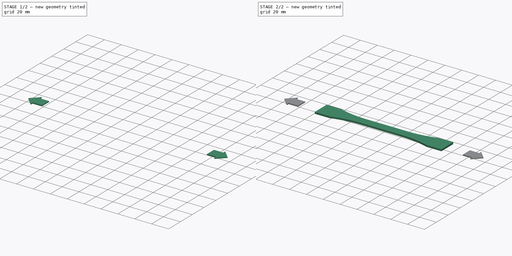
[diagram: build sequence overview — one tinted view per stage of 2, left to right]
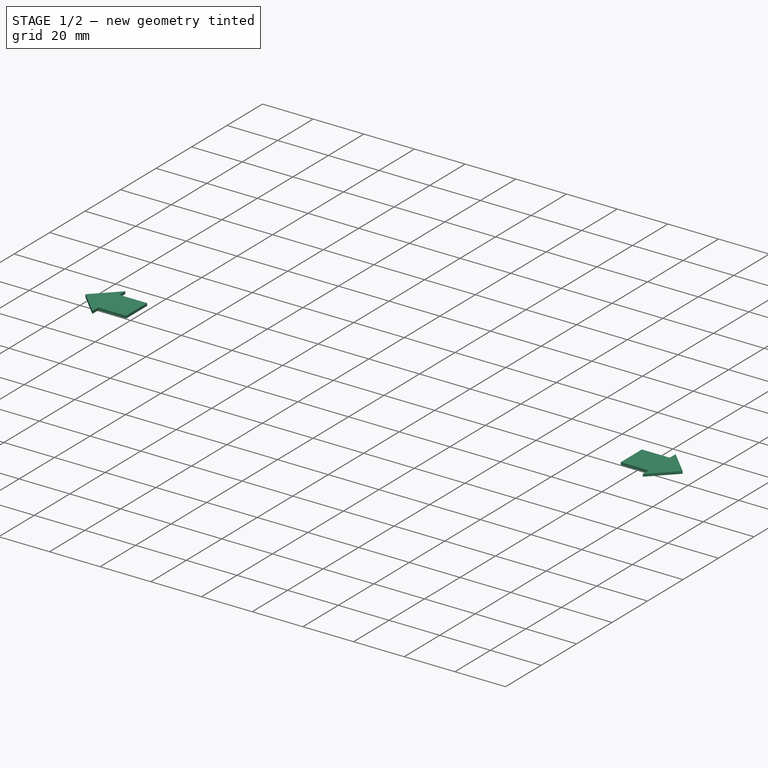
[diagram: stage 1 of 2 — iso view after this stage's code; geometry added in this stage tinted green]
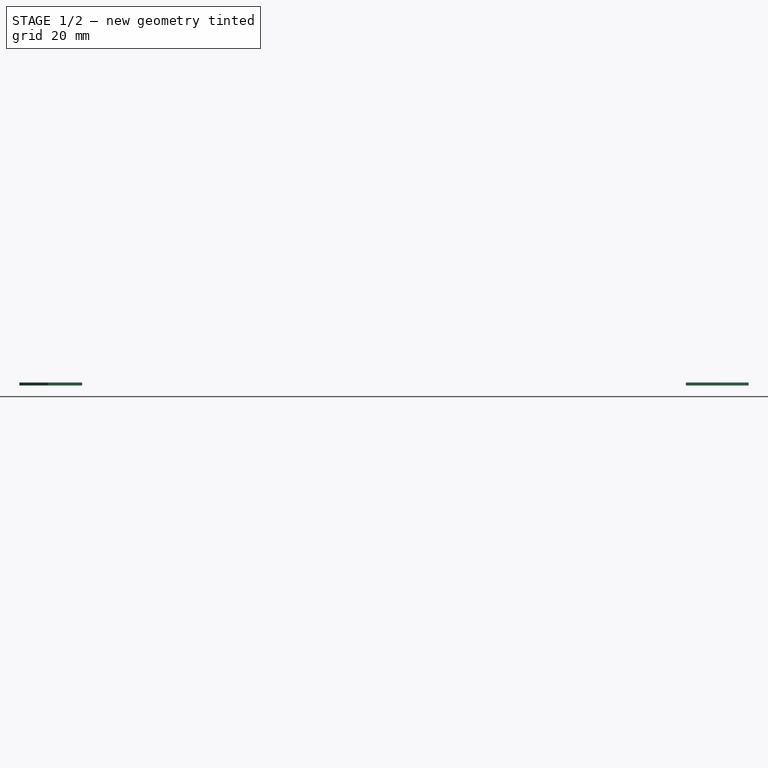
[diagram: stage 1 of 2 — front view after this stage's code; geometry added in this stage tinted green]
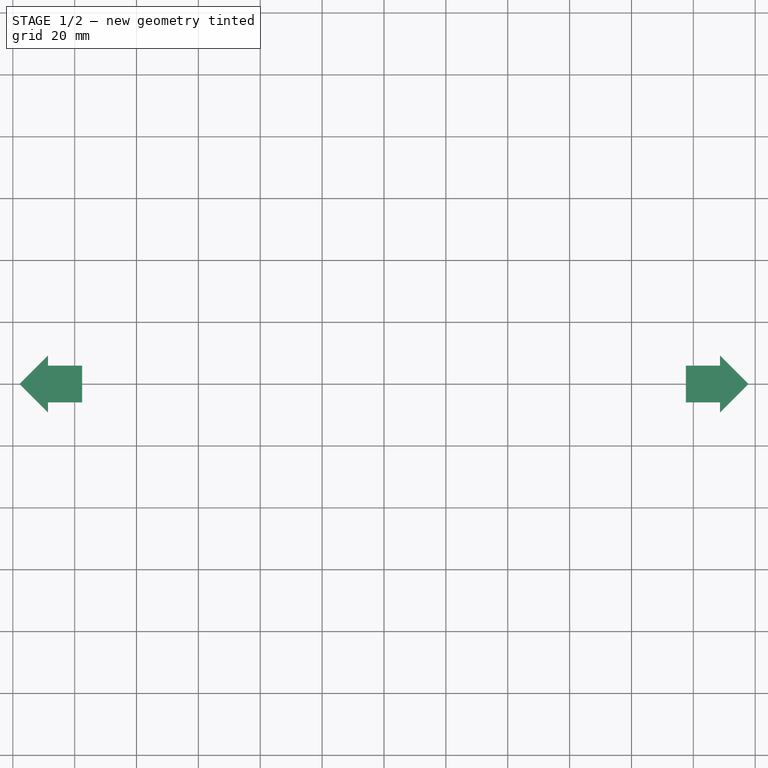
[diagram: stage 1 of 2 — top view after this stage's code; geometry added in this stage tinted green]
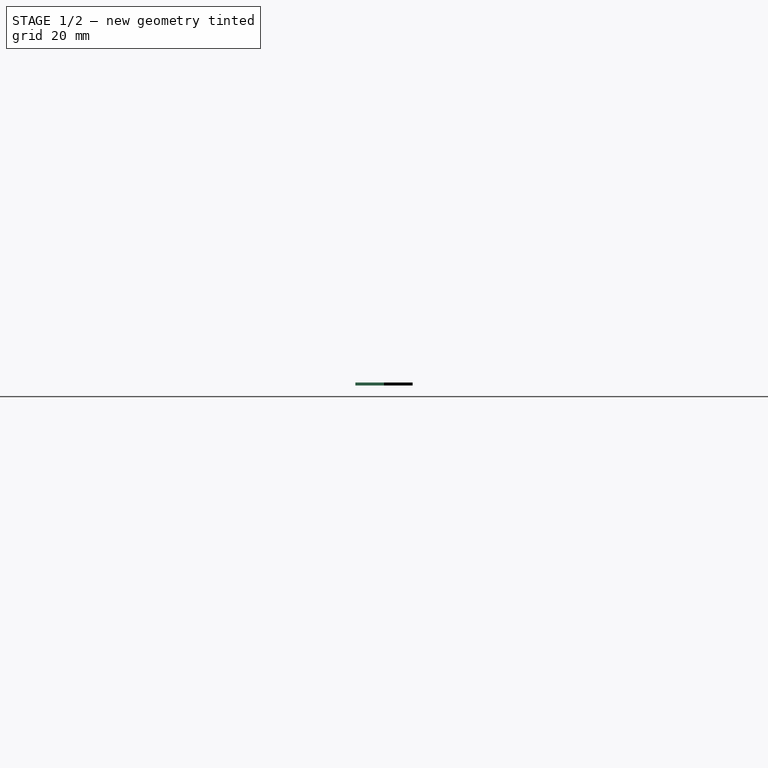
[diagram: stage 1 of 2 — right view after this stage's code; geometry added in this stage tinted green]
FCSTD DOCUMENT  (FreeCAD 0.16R6706 (Git))
Label: tensile_specimen
License: All rights reserved
LicenseURL: http://en.wikipedia.org/wiki/All_rights_reserved
objects: Sketcher::SketchObject×2, PartDesign::Pad×2, Part::FeaturePython×1, Part::MultiFuse×1, Drawing::FeatureViewPart×1, Drawing::FeaturePage×1
note: 8 computed .brp shape members not serialized (recipe doc carries the construction recipe); baked Part::Feature solids carry a one-line shape summary decoded from their .brp

FEATURE [Sketcher::SketchObject] Sketch001
  sketch-geometry (7):
    g0: LineSegment StartX=108.609 StartY=5.92502 StartZ=0 EndX=97.607 EndY=5.92502 EndZ=0
    g1: LineSegment StartX=97.607 StartY=5.92502 StartZ=0 EndX=97.607 EndY=-5.92502 EndZ=0
    g2: LineSegment StartX=97.607 StartY=-5.92502 StartZ=0 EndX=108.609 EndY=-5.92502 EndZ=0
    g3: LineSegment StartX=108.609 StartY=-5.92502 StartZ=0 EndX=108.609 EndY=-9.25523 EndZ=0
    g4: LineSegment StartX=108.609 StartY=-9.25523 StartZ=0 EndX=117.864 EndY=0 EndZ=0
    g5: LineSegment StartX=117.864 StartY=0 StartZ=0 EndX=108.609 EndY=9.25523 EndZ=0
    g6: LineSegment StartX=108.609 StartY=9.25523 StartZ=0 EndX=108.609 EndY=5.92502 EndZ=0
  constraints (17):
    c: Horizontal(g0)
    c: Coincident(g0,g1)
    c: Vertical(g1)
    c: Coincident(g1,g2)
    c: Horizontal(g2)
    c: Coincident(g2,g3)
    c: Vertical(g3)
    c: Coincident(g3,g4)
    c: PointOnObject(g4,g-1)
    c: Coincident(g4,g5)
    c: Coincident(g5,g6)
    c: Coincident(g6,g0)
    c: Vertical(g6)
    c: Equal(g5,g4)
    c: Perpendicular(g4,g5)
    c: Equal(g0,g2)
    c: Symmetric(g0,g1,g-1)
FEATURE [PartDesign::Pad] Pad001  label="lower arrow"
  Length = 1
  Length2 = 100
  Reversed = true
  Sketch = -> Sketch001
  Type = 0
FEATURE [Part::FeaturePython] Array  # Draft array (typed FeaturePython)
  Angle = 360
  ArrayType = 1
  Axis = (0,0,1)
  Base = -> Pad001
  Center = (0,0,0)
  Fuse = false
  IntervalAxis = (0,0,0)
  IntervalX = (1,0,0)
  IntervalY = (0,1,0)
  IntervalZ = (0,0,0)
  NumberPolar = 2
  NumberX = 2
  NumberY = 2
  NumberZ = 1
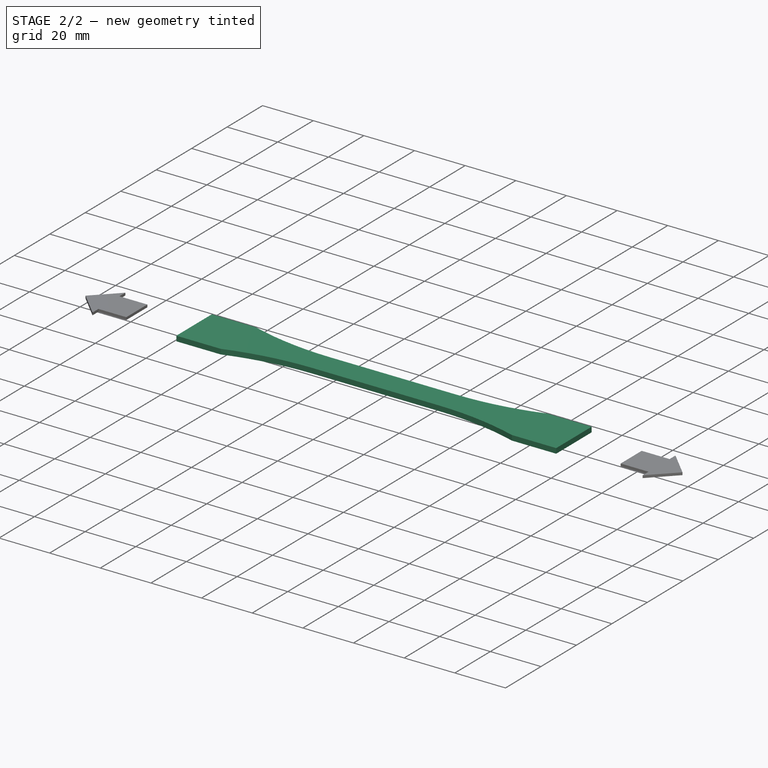
[diagram: stage 2 of 2 — iso view after this stage's code; geometry added in this stage tinted green]
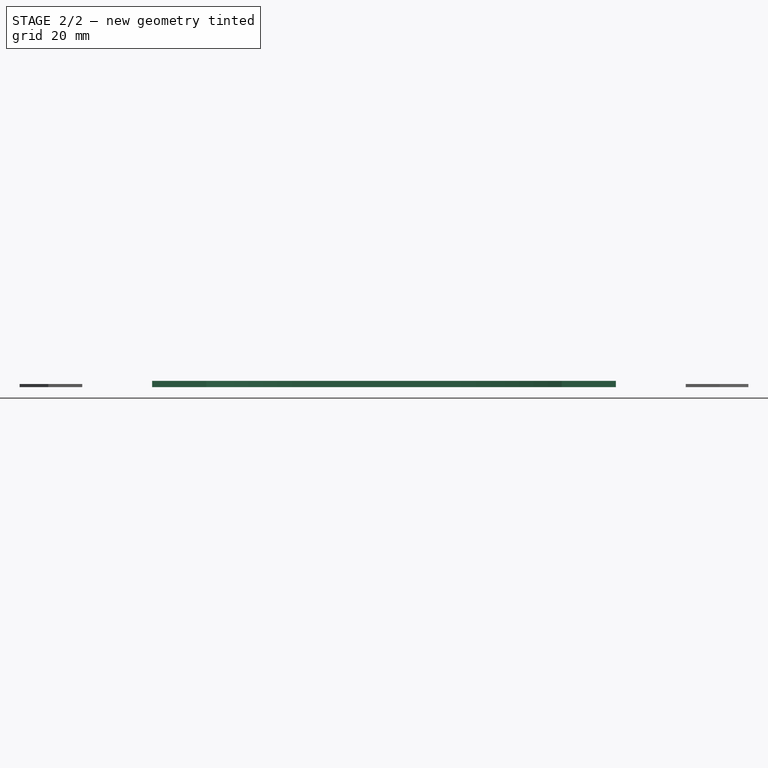
[diagram: stage 2 of 2 — front view after this stage's code; geometry added in this stage tinted green]
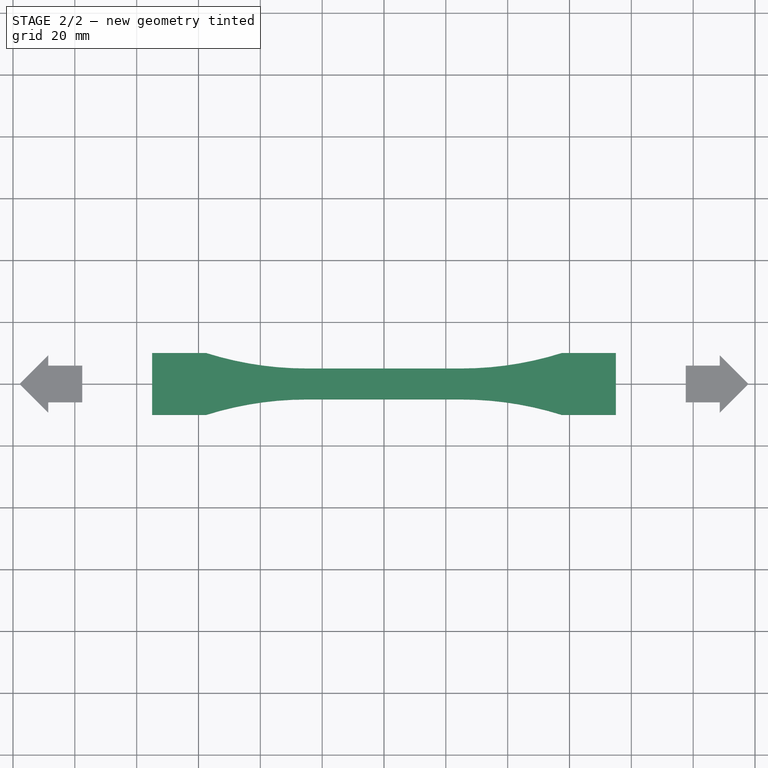
[diagram: stage 2 of 2 — top view after this stage's code; geometry added in this stage tinted green]
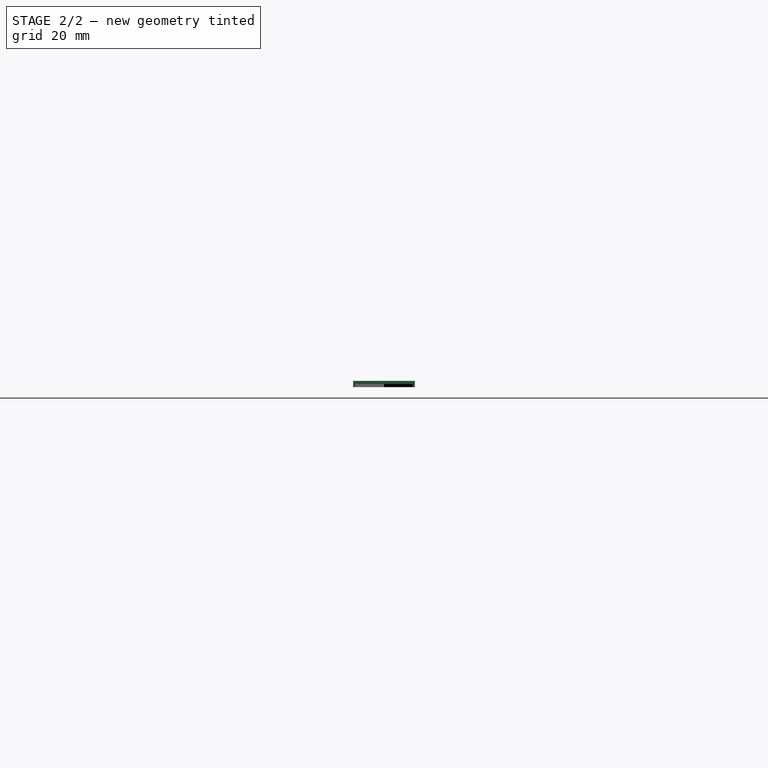
[diagram: stage 2 of 2 — right view after this stage's code; geometry added in this stage tinted green]
FEATURE [Sketcher::SketchObject] Sketch
  sketch-geometry (12):
    g0: LineSegment StartX=-57.4808 StartY=10 StartZ=0 EndX=-75 EndY=10 EndZ=0
    g1: LineSegment StartX=-75 StartY=10 StartZ=0 EndX=-75 EndY=-10 EndZ=0
    g2: LineSegment StartX=-75 StartY=-10 StartZ=0 EndX=-57.4808 EndY=-10 EndZ=0
    g3: LineSegment StartX=57.4808 StartY=10 StartZ=0 EndX=75 EndY=10 EndZ=0
    g4: LineSegment StartX=75 StartY=10 StartZ=0 EndX=75 EndY=-10 EndZ=0
    g5: LineSegment StartX=75 StartY=-10 StartZ=0 EndX=57.4807 EndY=-10 EndZ=0
    g6: LineSegment StartX=-25.0001 StartY=5 StartZ=0 EndX=24.9999 EndY=5 EndZ=0
    g7: LineSegment StartX=-25.0001 StartY=-5 StartZ=0 EndX=24.9999 EndY=-5 EndZ=0
    g8: ArcOfCircle CenterX=-25 CenterY=113 CenterZ=0 NormalX=0 NormalY=0 NormalZ=1 Radius=108 StartAngle=4.40691 EndAngle=4.71239
    g9: ArcOfCircle CenterX=-25.0001 CenterY=-113 CenterZ=0 NormalX=0 NormalY=0 NormalZ=1 Radius=108 StartAngle=1.5708 EndAngle=1.87627
    g10: ArcOfCircle CenterX=24.9999 CenterY=-113 CenterZ=0 NormalX=0 NormalY=0 NormalZ=1 Radius=108 StartAngle=1.26532 EndAngle=1.5708
    g11: ArcOfCircle CenterX=25 CenterY=113 CenterZ=0 NormalX=0 NormalY=0 NormalZ=1 Radius=108 StartAngle=4.71239 EndAngle=5.01787
  constraints (38):
    c: Horizontal(g0)
    c: Coincident(g0,g1)
    c: Vertical(g1)
    c: Coincident(g1,g2)
    c: Horizontal(g2)
    c: Horizontal(g3)
    c: Coincident(g3,g4)
    c: Vertical(g4)
    c: Coincident(g4,g5)
    c: Horizontal(g5)
    c: Equal(g1,g4)
    c: Symmetric(g3,g4,g-1)
    c: DistanceY(g4,g4) = 20
    c: Horizontal(g6)
    c: Symmetric(g0,g3,g-2)
    c: DistanceX(g0,g3) = 150
    c: Horizontal(g7)
    c: DistanceY(g7,g6) = 10
    c: Symmetric(g6,g7,g-1)
    c: DistanceX(g7,g7) = 50
    c: Equal(g6,g7)
    c: Coincident(g8,g6)
    c: Coincident(g8,g0)
    c: Coincident(g9,g2)
    c: Coincident(g9,g7)
    c: Coincident(g10,g7)
    c: Coincident(g10,g5)
    c: Coincident(g11,g6)
    c: Coincident(g11,g3)
    c: Equal(g8,g9)
    c: Equal(g9,g11)
    c: Equal(g11,g10)
    c: Radius(g8) = 108
    c: Tangent(g6,g8)
    c: Tangent(g9,g7)
    c: Tangent(g11,g6)
    c: Tangent(g10,g7)
    c: Symmetric(g0,g3,g-2)
FEATURE [PartDesign::Pad] Pad  label="tensile specimen"
  Length = 2
  Length2 = 100
  Midplane = true
  Sketch = -> Sketch
  Type = 0
FEATURE [Part::MultiFuse] Fusion
  Shapes = -> [Pad,Array]
FEATURE [Drawing::FeatureViewPart] View
  Direction = (1,-1,1)
  HiddenWidth = 0.15
  LineWidth = 0.35
  Rotation = 60
  Scale = 0.6
  ShowHiddenLines = false
  ShowSmoothLines = false
  Source = -> Fusion
  Tolerance = 0.05
  ViewResult = <blob: 3443 chars omitted>
  Visible = true
  X = 104.646
  Y = 148.296
FEATURE [Drawing::FeaturePage] Page
  Group = -> [View]
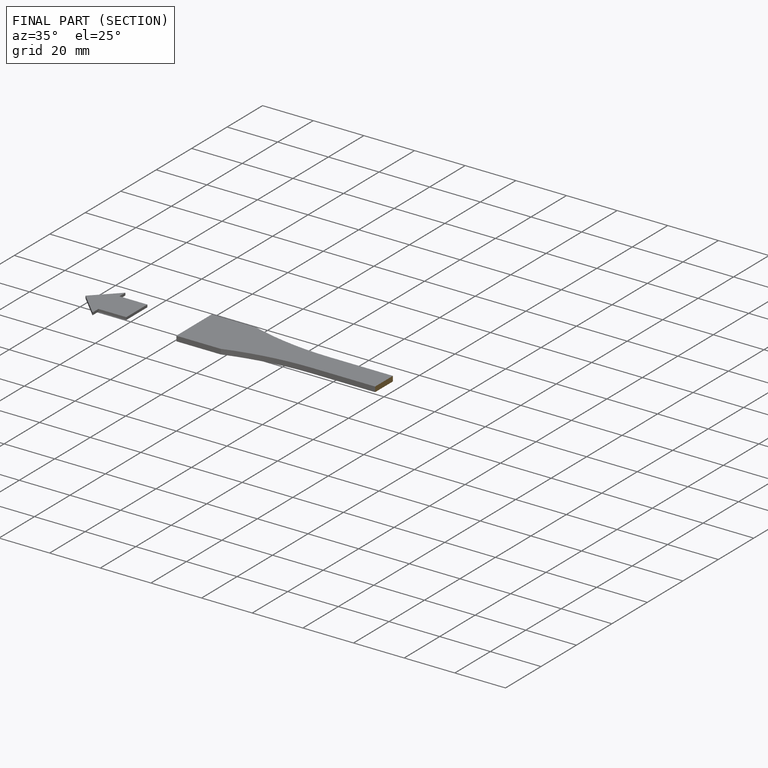
[diagram: finished part — half-section view (interior)]
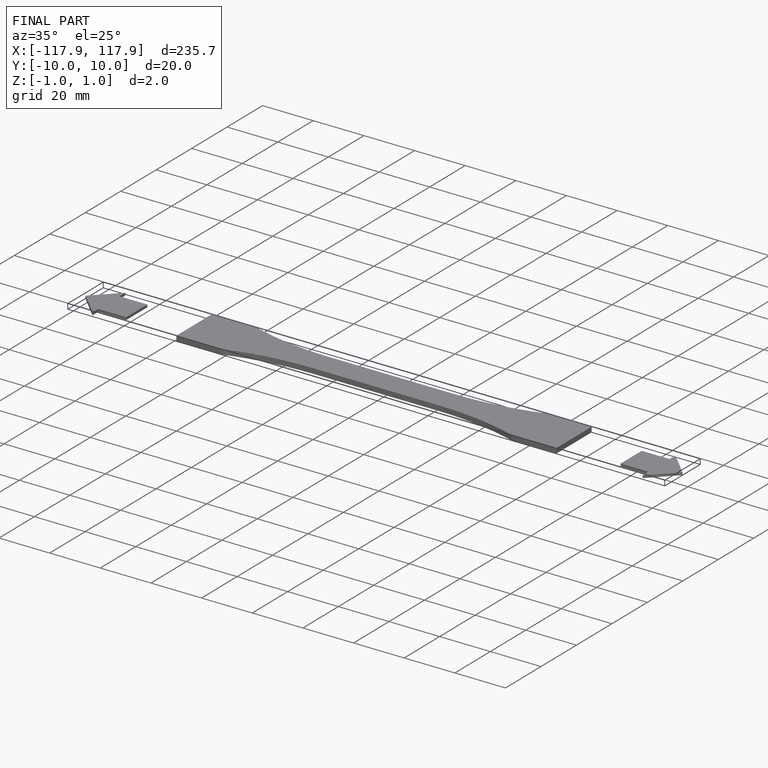
[diagram: finished part — iso view with bounding-box wireframe]
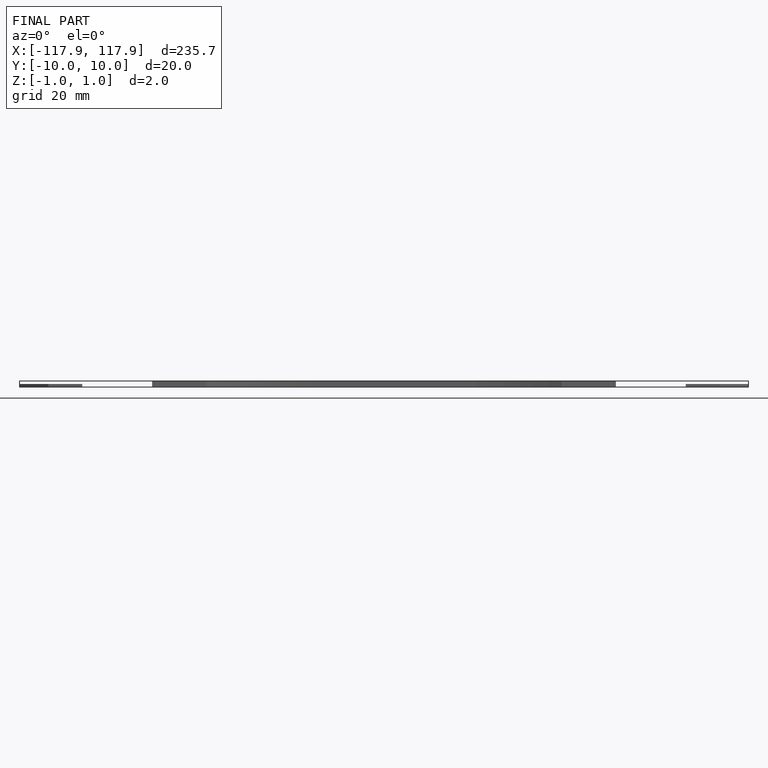
[diagram: finished part — front view with bounding-box wireframe]
